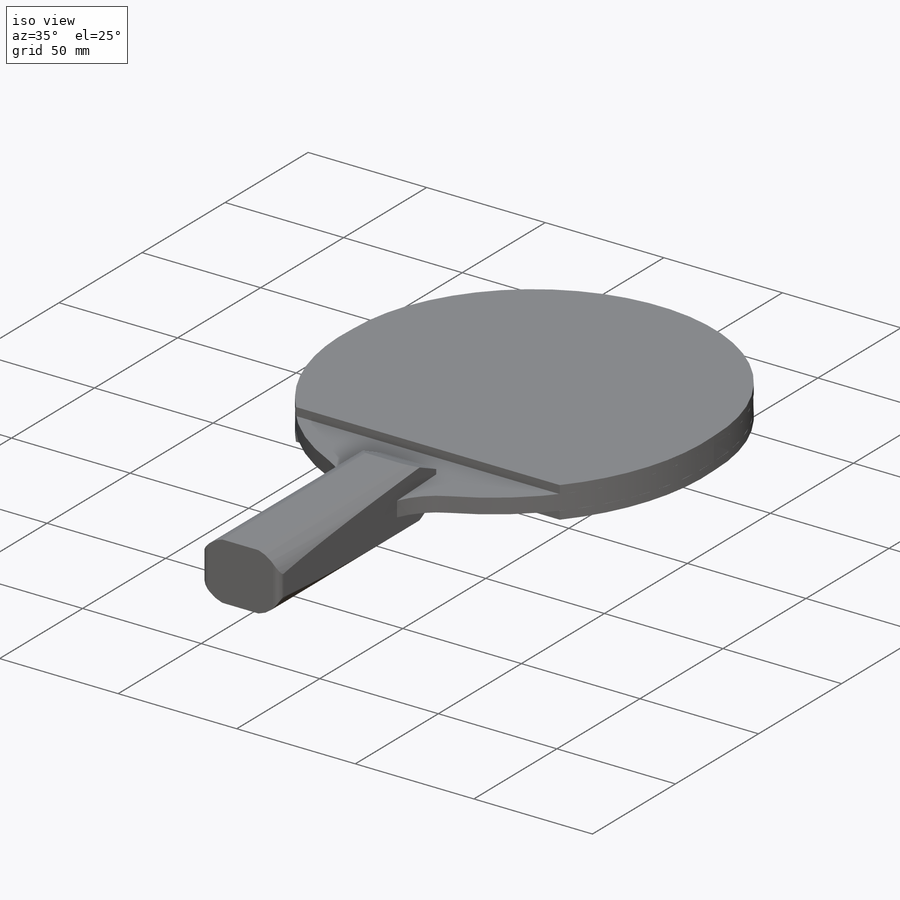
[diagram: iso view]
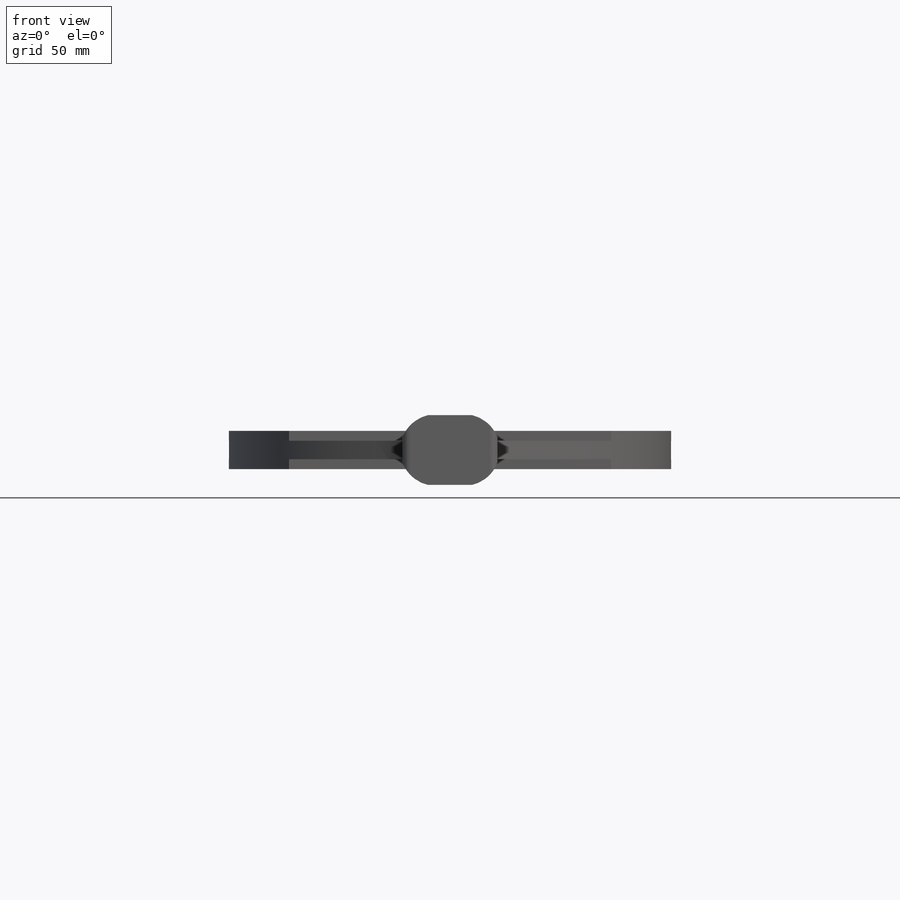
[diagram: front view]
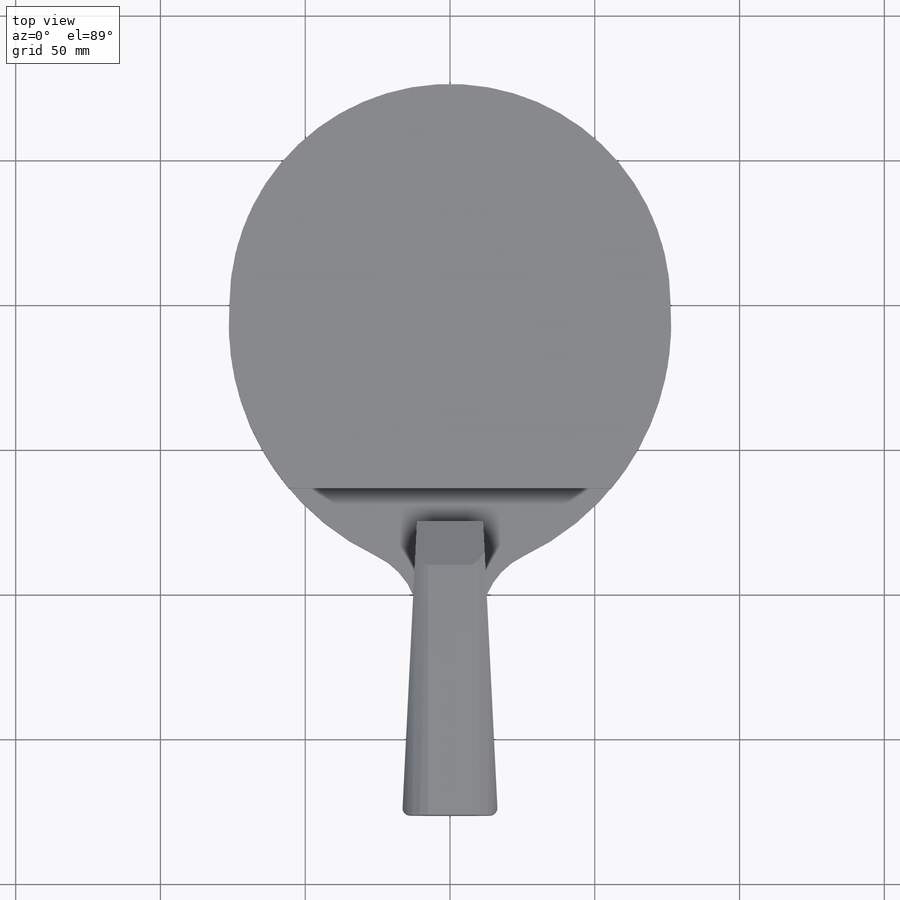
[diagram: top view]
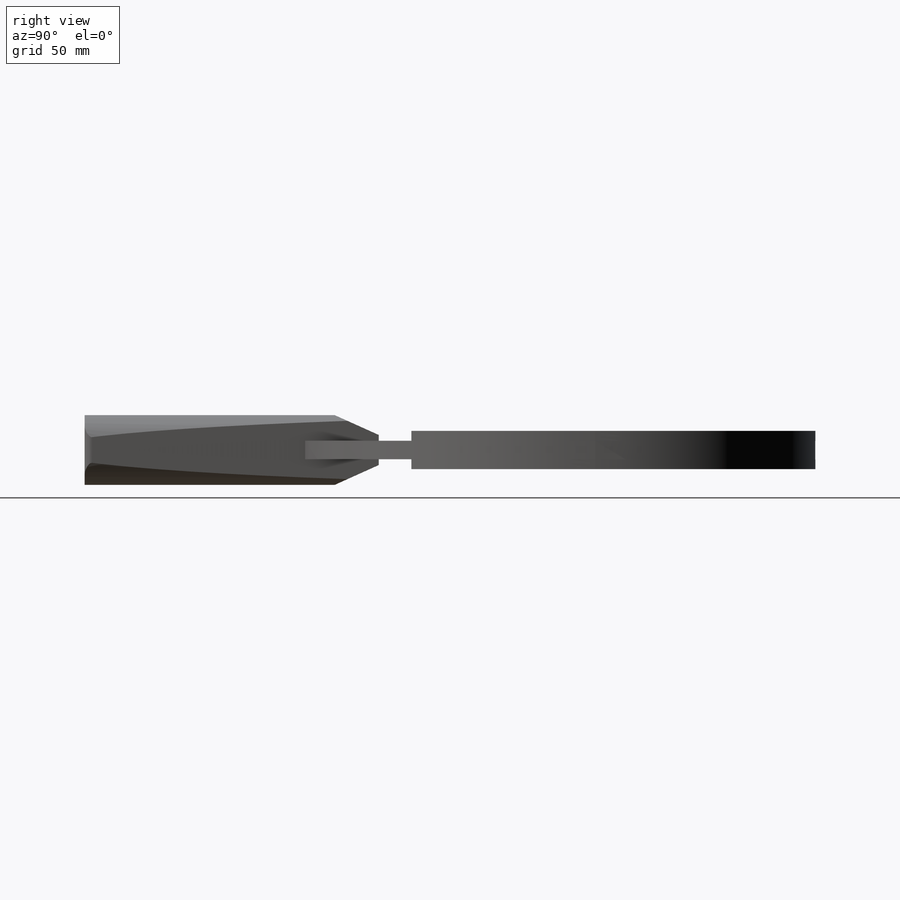
[diagram: right view]
SOLIDWORKS PART (.sldprt)
format: sldprt  version: not decoded by parser v0  size: 354,304 bytes
history: native  units: mm
features: sketch x8, extrude x6, cut_extrude x2, material x1, plane x1, mirror x1 (+12 scaffold rows collapsed)
feature tree (31):
  scaffold x12  (default folders/planes/origin — collapsed)
  material  "Beech"
  sketch  "Sketch2"  dims[D1=76.2mm D3=88.9mm D6=25.4mm D9=2.54mm D2=50.8mm D4=6.35mm D5=25.4mm D7=76.2mm D8=16.51mm]
  extrude  "Boss-Extrude1"  Depth=6.35mm
  sketch  "Sketch3"  dims[D1=63.5mm]
  extrude  "Boss-Extrude2"  Depth=1.524mm
  sketch  "Sketch4"
  extrude  "Boss-Extrude4"  Depth=1.905mm
  plane  "Plane1"  Offset=3.175mm
  sketch  "Sketch5"  dims[D2=63.5mm D1=0.0mm]
  extrude  "Boss-Extrude5"  Depth=1.524mm
  sketch  "Sketch6"  dims[D1=0.0mm]
  extrude  "Boss-Extrude6"  Depth=1.905mm
  sketch  "Sketch7"  dims[D1=101.6mm]
  extrude  "Boss-Extrude7"  Depth=8.89mm
  sketch  "Sketch8"  dims[D2=12.7mm D3=12.7mm D1=15.24mm]
  cut_extrude  "Cut-Extrude1"  Depth=101.6mm
  sketch  "Sketch9"  dims[c1.D1=15.875mm c1.D2=2.032mm c2.D1=15.24mm c2.D2=15.24mm c2.D3=6.858mm]
  cut_extrude  "Cut-Extrude2"  Depth=50.8mm
  mirror  "Mirror8"
decode coverage: 15 of 17 modeling features carry decoded parameters
note: suppression state not decoded; provenance and decode notes live in map.json
